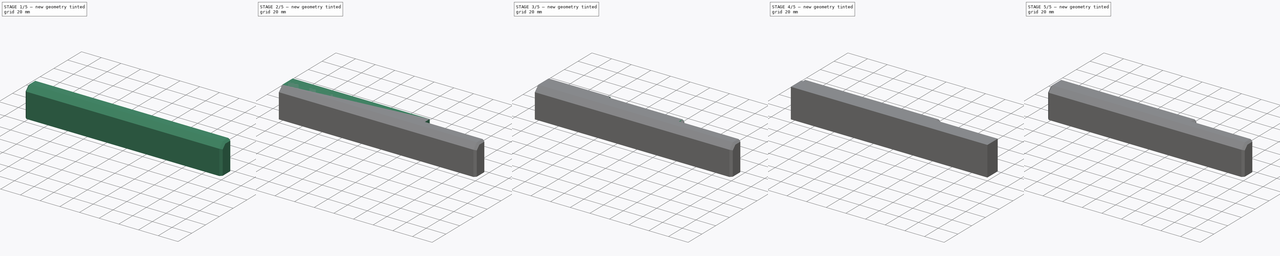
[diagram: build sequence overview — one tinted view per stage of 5, left to right]
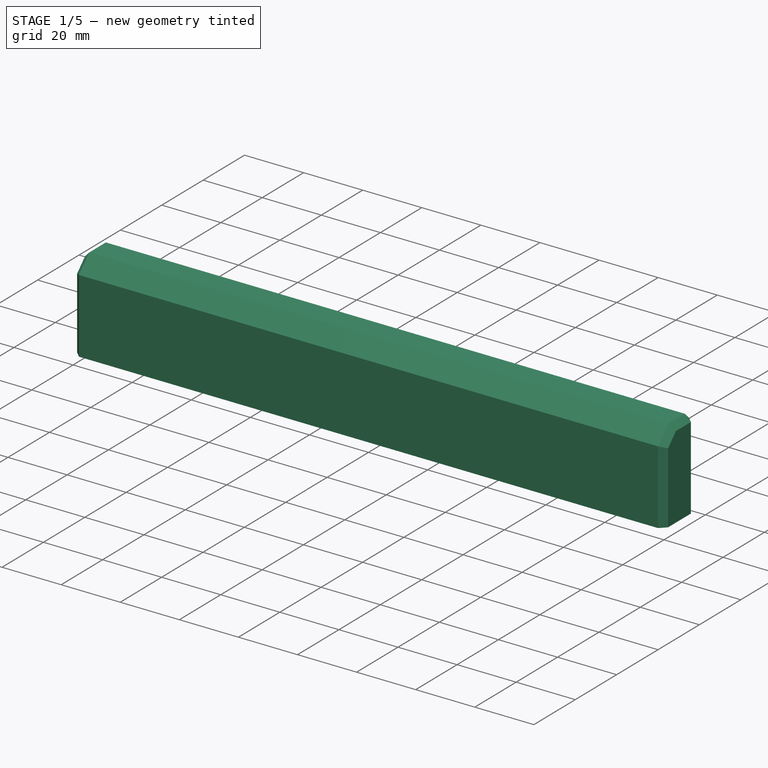
[diagram: stage 1 of 5 — iso view after this stage's code; geometry added in this stage tinted green]
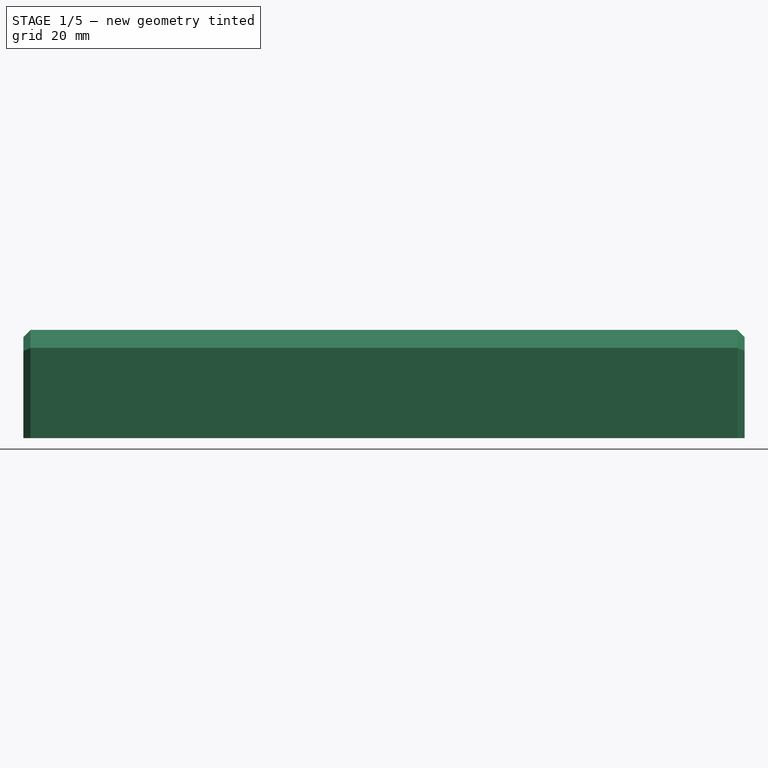
[diagram: stage 1 of 5 — front view after this stage's code; geometry added in this stage tinted green]
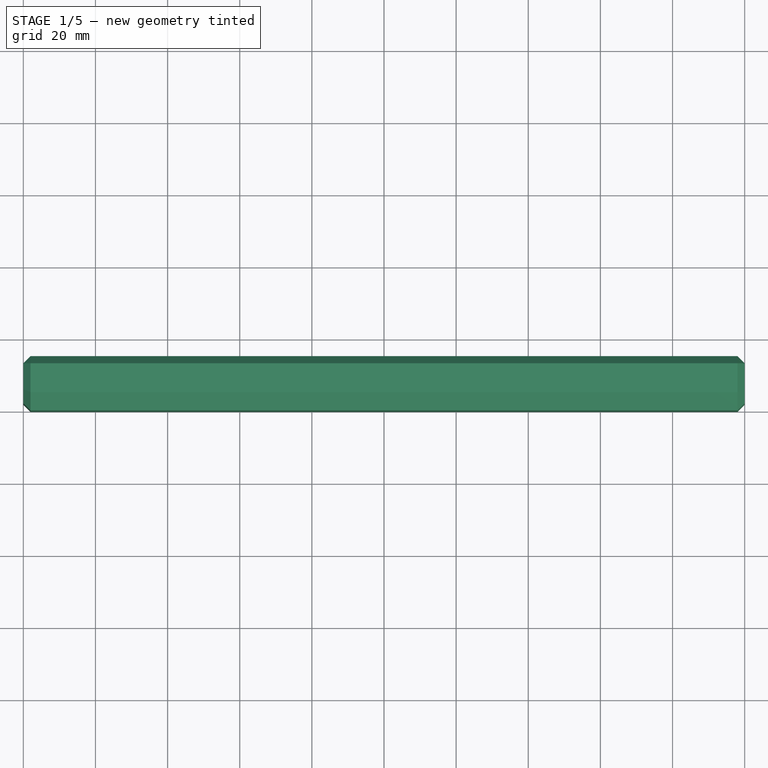
[diagram: stage 1 of 5 — top view after this stage's code; geometry added in this stage tinted green]
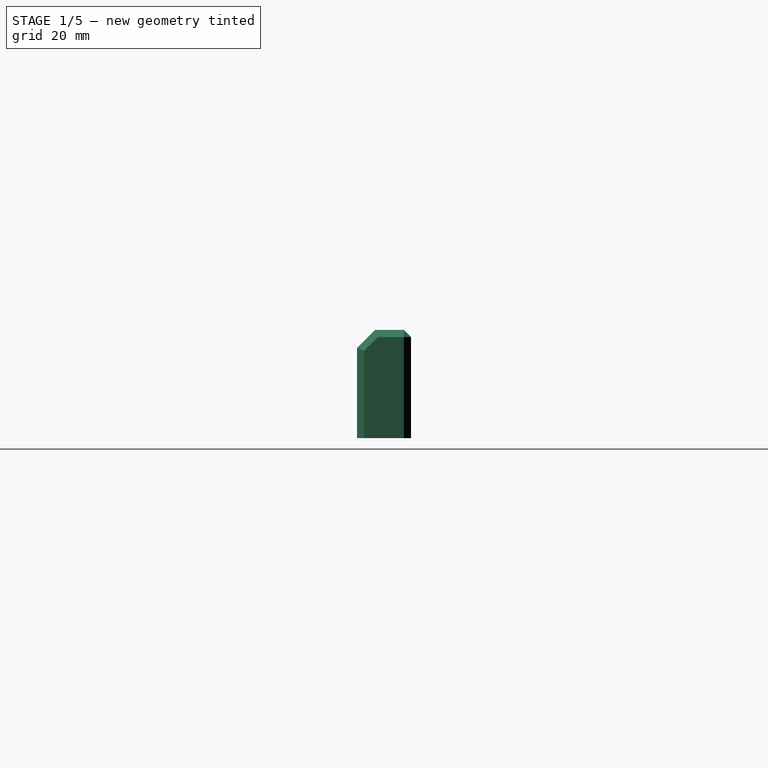
[diagram: stage 1 of 5 — right view after this stage's code; geometry added in this stage tinted green]
FCSTD DOCUMENT  (FreeCAD 1.0R39319 (Git))
Label: foam_shim
License: All rights reserved
LicenseURL: https://en.wikipedia.org/wiki/All_rights_reserved
objects: PartDesign::Chamfer×8, Part::Box×4, PartDesign::FeatureBase×4, PartDesign::Body×4, Sketcher::SketchObject×2, PartDesign::Pocket×2
note: 50 computed .brp shape members not serialized (recipe doc carries the construction recipe); baked Part::Feature solids carry a one-line shape summary decoded from their .brp

FEATURE [PartDesign::Body] Body002  label="keski_shimmiX4"
  AllowCompound = false
  BaseFeature = -> Box002
  Group = -> [BaseFeature002,Chamfer004,Chamfer005]
  Origin = -> Origin002
  Tip = -> Chamfer005
FEATURE [Part::Box] Box003  label="etu_taka_shimmiX003"
  AttacherType = Attacher::AttachEngine3D
  Height = 30
  Length = 200
  Width = 15
FEATURE [PartDesign::FeatureBase] BaseFeature003
  BaseFeature = -> Box003
  Suppressed = false
FEATURE [PartDesign::Chamfer] Chamfer006
  Angle = 45
  Base = -> BaseFeature003 [Edge10]
  BaseFeature = -> BaseFeature003
  ChamferType = 0
  FlipDirection = false
  Refine = true
  Size = 5
  Size2 = 1
  SupportTransform = false
  Suppressed = false
  UseAllEdges = false
FEATURE [PartDesign::Chamfer] Chamfer007
  Angle = 45
  Base = -> Chamfer006 [Edge4,Edge14,Edge13,Edge15,Edge5,Edge1,Edge6,Edge2,Edge10]
  BaseFeature = -> Chamfer006
  ChamferType = 0
  FlipDirection = false
  Refine = true
  Size = 2
  Size2 = 1
  SupportTransform = false
  Suppressed = false
  UseAllEdges = false
FEATURE [PartDesign::Body] Body003  label="etu_taka_shimmiX2"
  AllowCompound = false
  BaseFeature = -> Box003
  Group = -> [BaseFeature003,Chamfer006,Chamfer007]
  Origin = -> Origin003
  Tip = -> Chamfer007
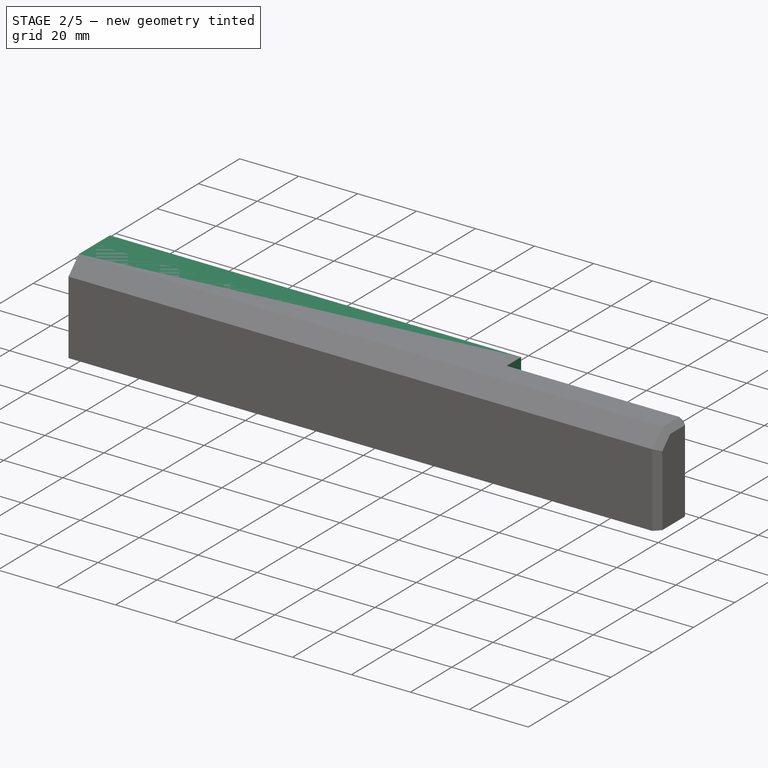
[diagram: stage 2 of 5 — iso view after this stage's code; geometry added in this stage tinted green]
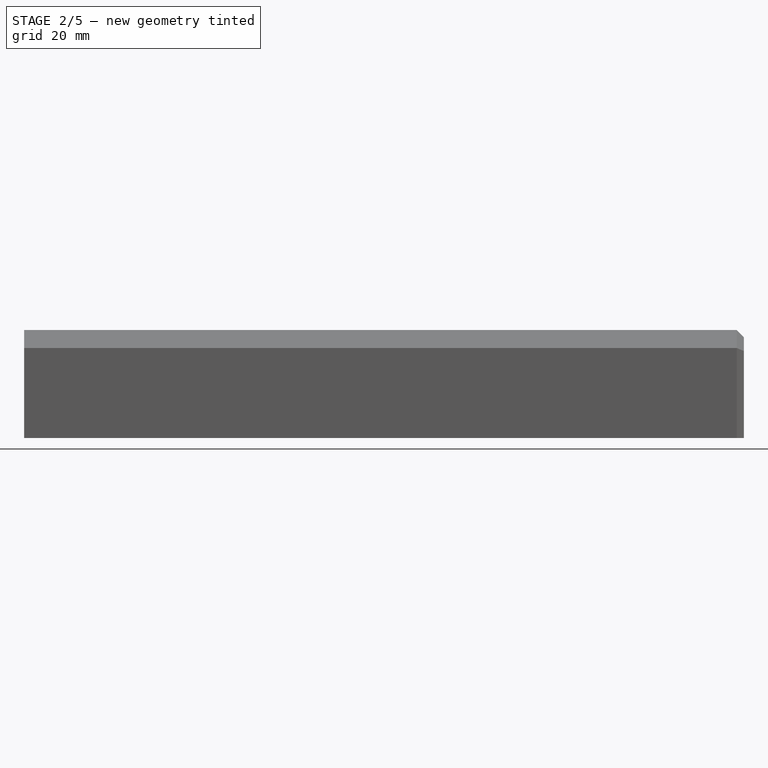
[diagram: stage 2 of 5 — front view after this stage's code; geometry added in this stage tinted green]
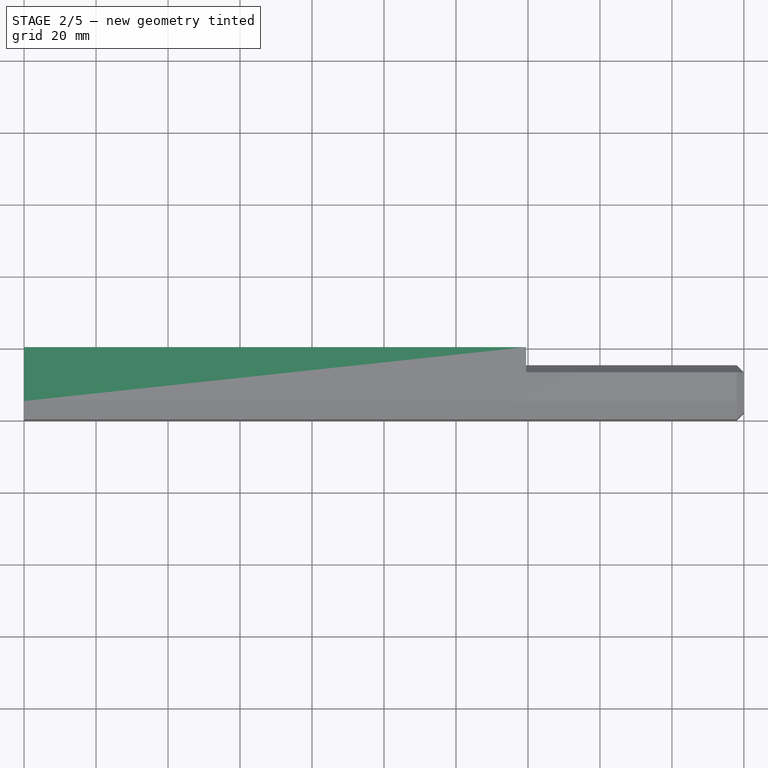
[diagram: stage 2 of 5 — top view after this stage's code; geometry added in this stage tinted green]
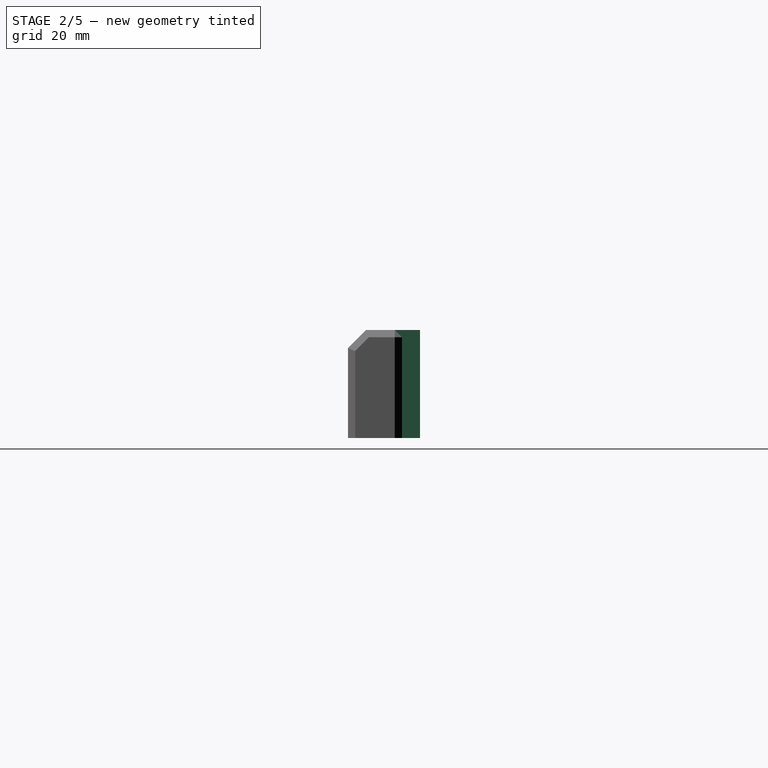
[diagram: stage 2 of 5 — right view after this stage's code; geometry added in this stage tinted green]
FEATURE [PartDesign::Body] Body001  label="kulma_shimmi"
  AllowCompound = false
  BaseFeature = -> Box001
  Group = -> [BaseFeature001,Chamfer002,Chamfer003,Sketch001,Pocket001]
  Origin = -> Origin001
  Tip = -> Pocket001
FEATURE [Part::Box] Box002  label="keski_shimmiX005"
  AttacherType = Attacher::AttachEngine3D
  Height = 30
  Length = 139.5
  Width = 20
FEATURE [PartDesign::FeatureBase] BaseFeature002
  BaseFeature = -> Box002
  Suppressed = false
FEATURE [PartDesign::Chamfer] Chamfer004
  Angle = 45
  Base = -> BaseFeature002 [Edge10]
  BaseFeature = -> BaseFeature002
  ChamferType = 0
  FlipDirection = false
  Refine = true
  Size = 5
  Size2 = 1
  SupportTransform = false
  Suppressed = false
  UseAllEdges = false
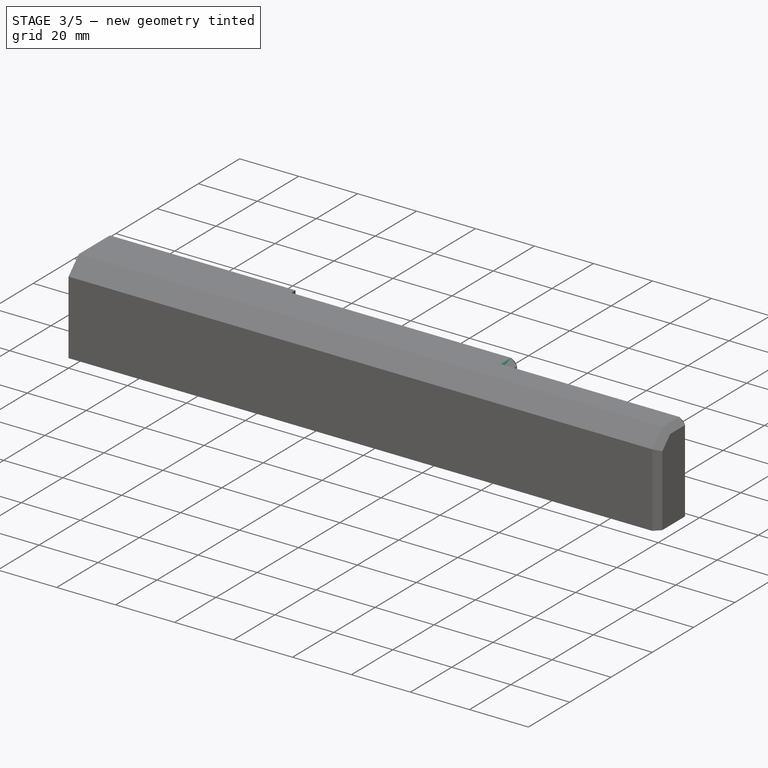
[diagram: stage 3 of 5 — iso view after this stage's code; geometry added in this stage tinted green]
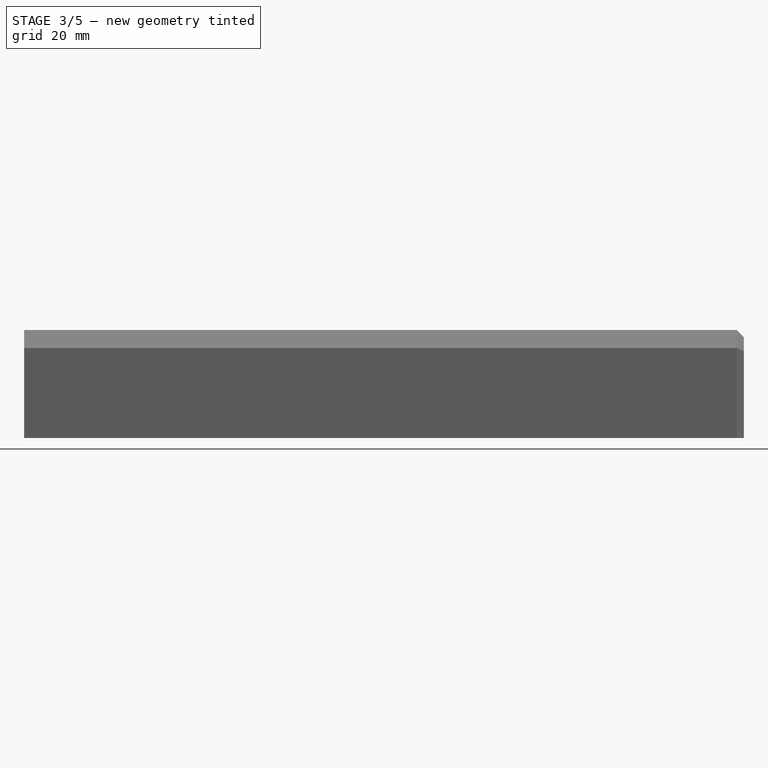
[diagram: stage 3 of 5 — front view after this stage's code; geometry added in this stage tinted green]
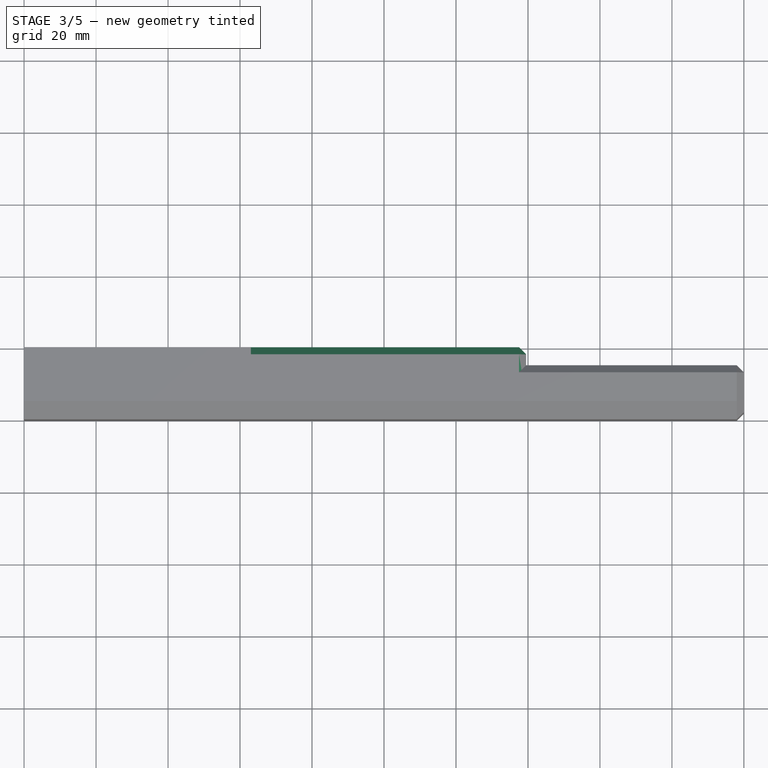
[diagram: stage 3 of 5 — top view after this stage's code; geometry added in this stage tinted green]
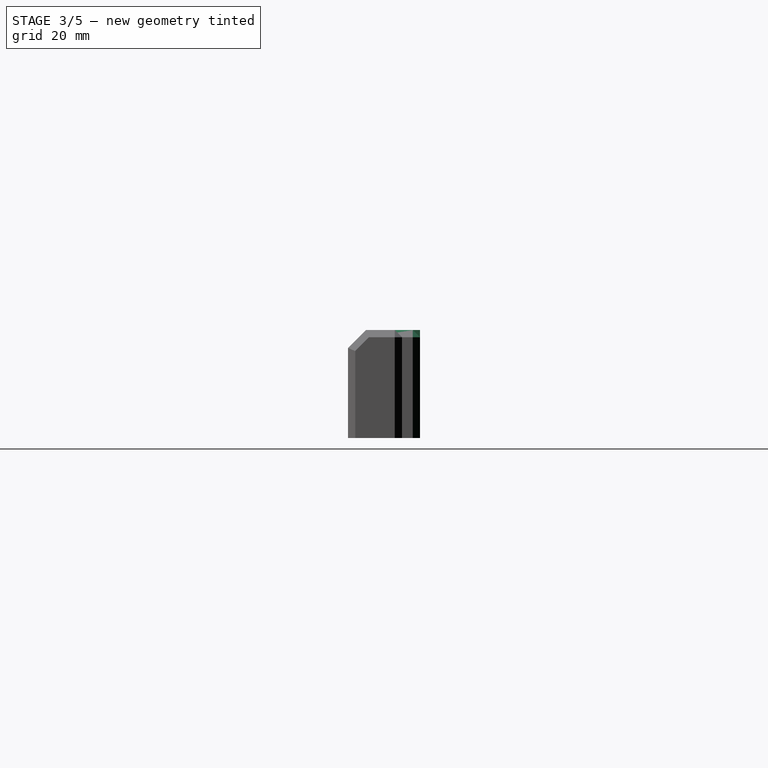
[diagram: stage 3 of 5 — right view after this stage's code; geometry added in this stage tinted green]
FEATURE [PartDesign::Body] Body
  AllowCompound = false
  BaseFeature = -> Box
  Group = -> [BaseFeature,Chamfer,Chamfer001,Sketch,Pocket]
  Origin = -> Origin
  Tip = -> Pocket
FEATURE [Part::Box] Box001  label="kulma_shimmi001"
  AttacherType = Attacher::AttachEngine3D
  Height = 30
  Length = 63
  Width = 20
FEATURE [PartDesign::FeatureBase] BaseFeature001
  BaseFeature = -> Box001
  Suppressed = false
FEATURE [PartDesign::Chamfer] Chamfer002
  Angle = 45
  Base = -> BaseFeature001 [Edge10]
  BaseFeature = -> BaseFeature001
  ChamferType = 0
  FlipDirection = false
  Refine = true
  Size = 5
  Size2 = 1
  SupportTransform = false
  Suppressed = false
  UseAllEdges = false
FEATURE [PartDesign::Chamfer] Chamfer005
  Angle = 45
  Base = -> Chamfer004 [Edge4,Edge14,Edge13,Edge15,Edge5,Edge1,Edge6,Edge2,Edge10]
  BaseFeature = -> Chamfer004
  ChamferType = 0
  FlipDirection = false
  Refine = true
  Size = 2
  Size2 = 1
  SupportTransform = false
  Suppressed = false
  UseAllEdges = false
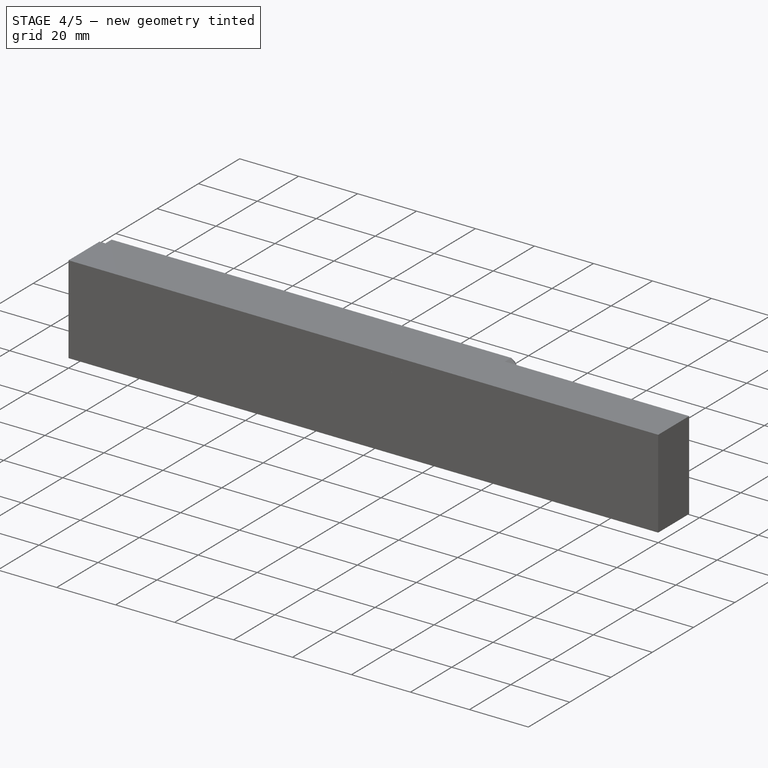
[diagram: stage 4 of 5 — iso view after this stage's code; geometry added in this stage tinted green]
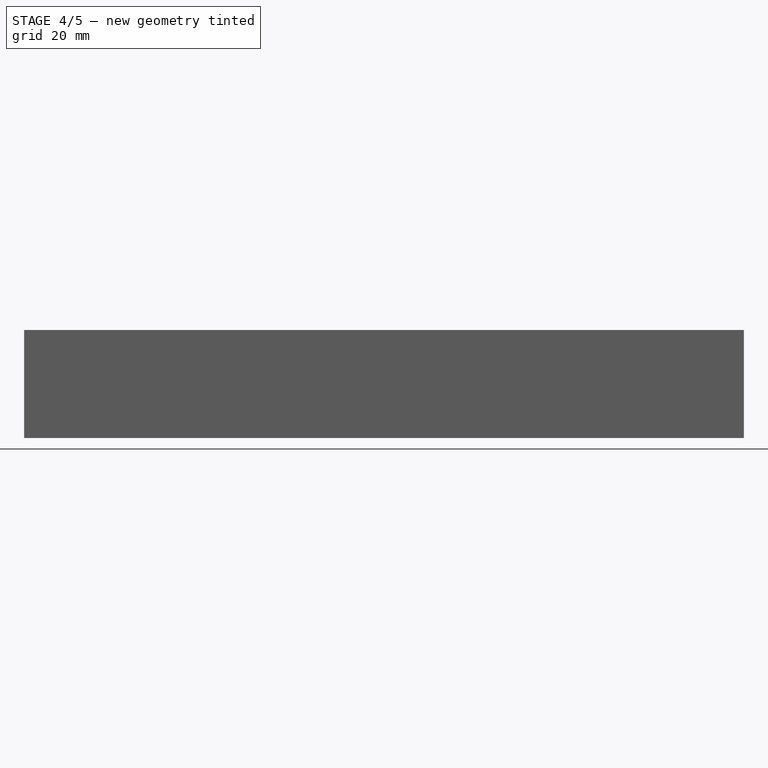
[diagram: stage 4 of 5 — front view after this stage's code; geometry added in this stage tinted green]
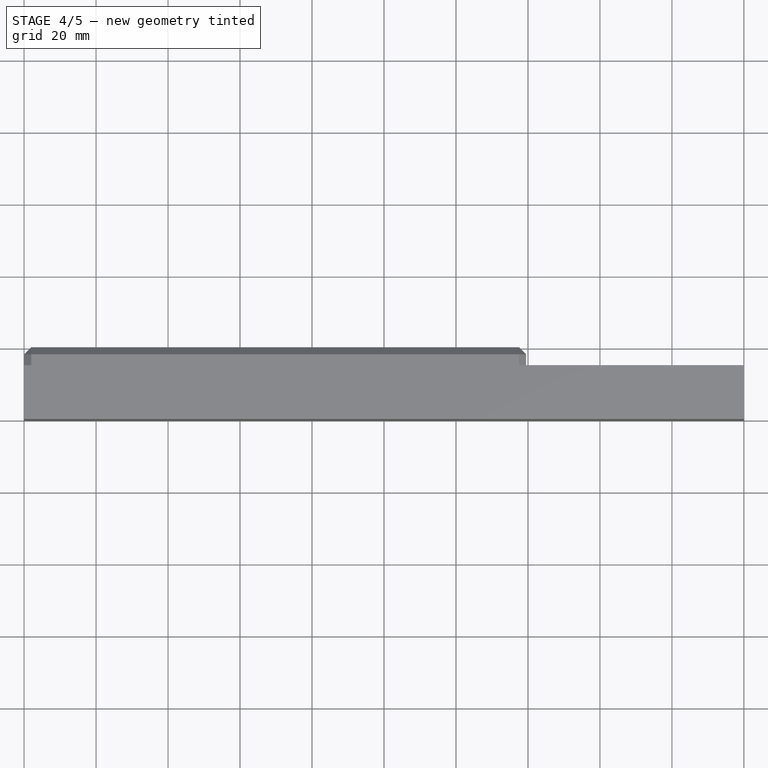
[diagram: stage 4 of 5 — top view after this stage's code; geometry added in this stage tinted green]
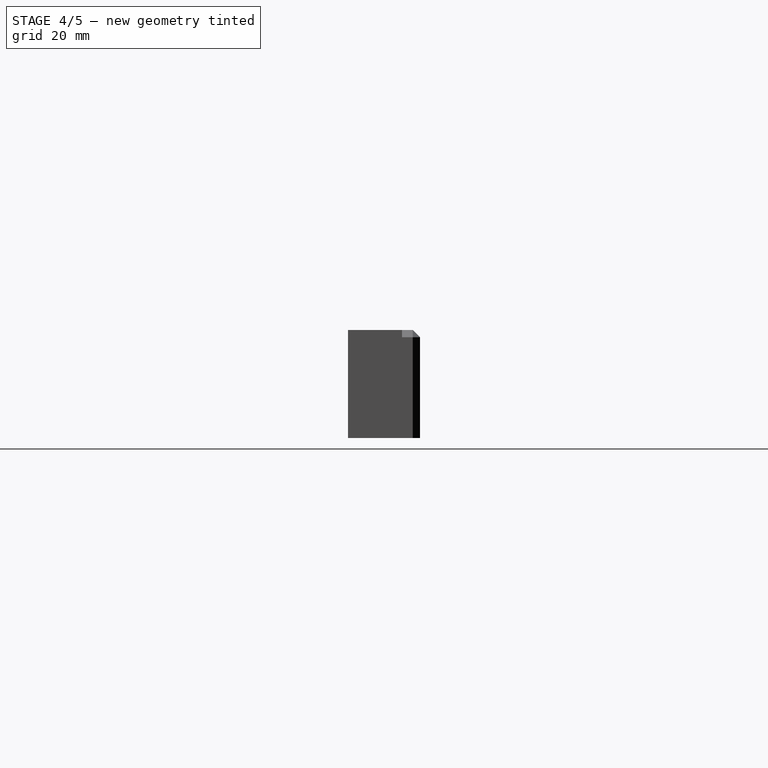
[diagram: stage 4 of 5 — right view after this stage's code; geometry added in this stage tinted green]
FEATURE [Part::Box] Box  label="Cube"
  AttacherType = Attacher::AttachEngine3D
  Height = 30
  Length = 200
  Width = 15
FEATURE [PartDesign::Chamfer] Chamfer003
  Angle = 45
  Base = -> Chamfer002 [Edge4,Edge14,Edge13,Edge15,Edge5,Edge1,Edge6,Edge2,Edge10]
  BaseFeature = -> Chamfer002
  ChamferType = 0
  FlipDirection = false
  Refine = true
  Size = 2
  Size2 = 1
  SupportTransform = false
  Suppressed = false
  UseAllEdges = false
FEATURE [Sketcher::SketchObject] Sketch001
  ArcFitTolerance = 1e-06
  AttachmentSupport = -> [Chamfer003]
  FullyConstrained = true
  MakeInternals = false
  MapMode = 5
  Placement = pos=(0,0,0) rot=(0.57735,-0.57735,-0.57735;2.0944rad)
  sketch-geometry (3):
    g0: LineSegment StartX=-5 StartY=0 StartZ=0 EndX=0 EndY=0 EndZ=0
    g1: LineSegment StartX=0 StartY=0 StartZ=0 EndX=0 EndY=7 EndZ=0
    g2: LineSegment StartX=0 StartY=7 StartZ=0 EndX=-5 EndY=0 EndZ=0
  constraints (9):
    c: PointOnObject(g0,g-1)
    c: PointOnObject(g0,g-1)
    c: Coincident(g1,g0)
    c: Coincident(g2,g1)
    c: Coincident(g2,g0)
    c: DistanceX(g0,g0) = 5
    c: DistanceY(g2,g2) = 7
    c: Vertical(g1)
    c: Vertical(g0,g-1)
FEATURE [PartDesign::Pocket] Pocket001
  BaseFeature = -> Chamfer003
  Direction = (1,0,0)
  Length = 13
  Length2 = 5
  Profile = -> Sketch001
  ReferenceAxis = -> Sketch001 [N_Axis]
  Refine = true
  Suppressed = false
  Type = 0
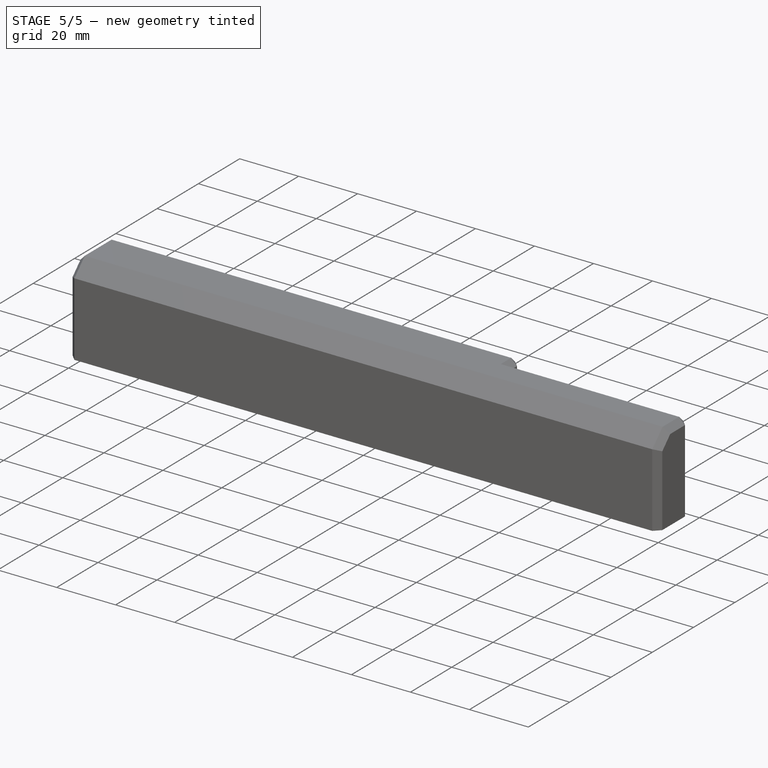
[diagram: stage 5 of 5 — iso view after this stage's code; geometry added in this stage tinted green]
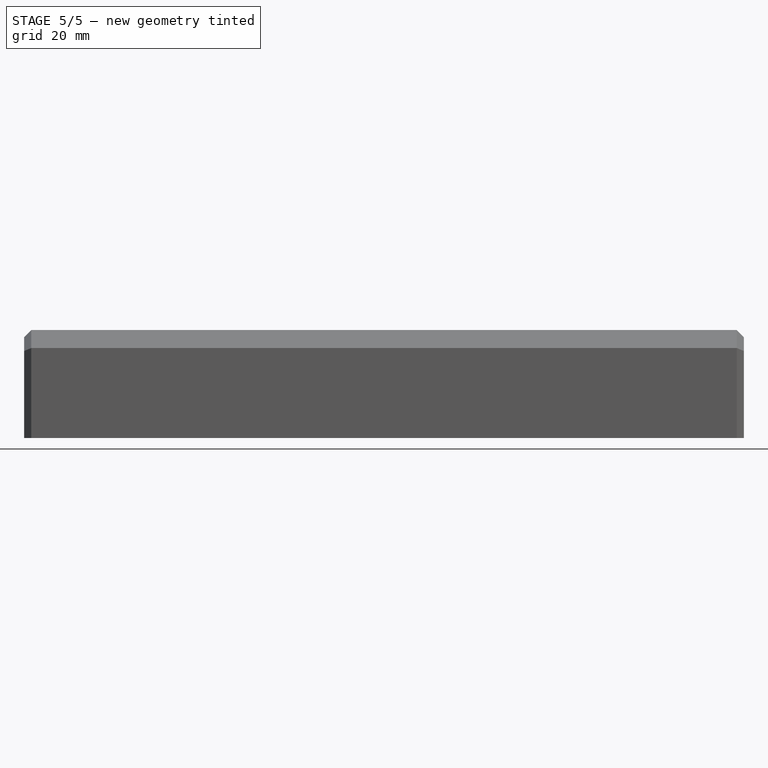
[diagram: stage 5 of 5 — front view after this stage's code; geometry added in this stage tinted green]
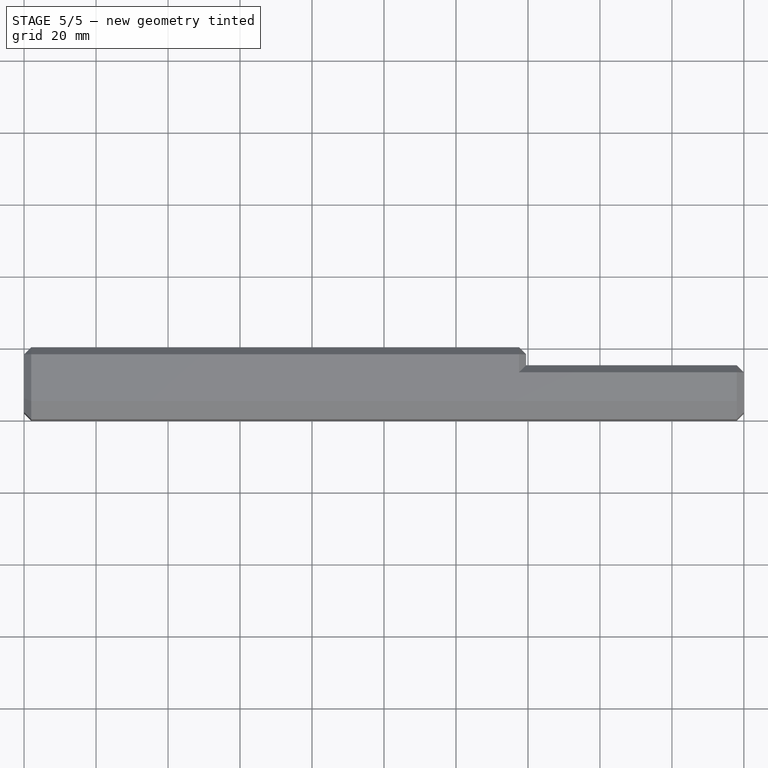
[diagram: stage 5 of 5 — top view after this stage's code; geometry added in this stage tinted green]
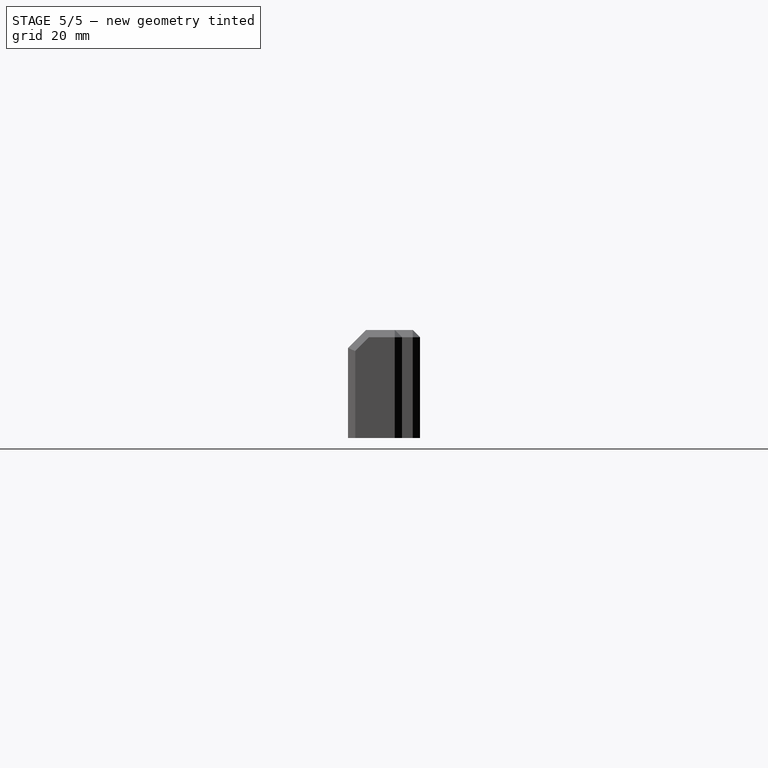
[diagram: stage 5 of 5 — right view after this stage's code; geometry added in this stage tinted green]
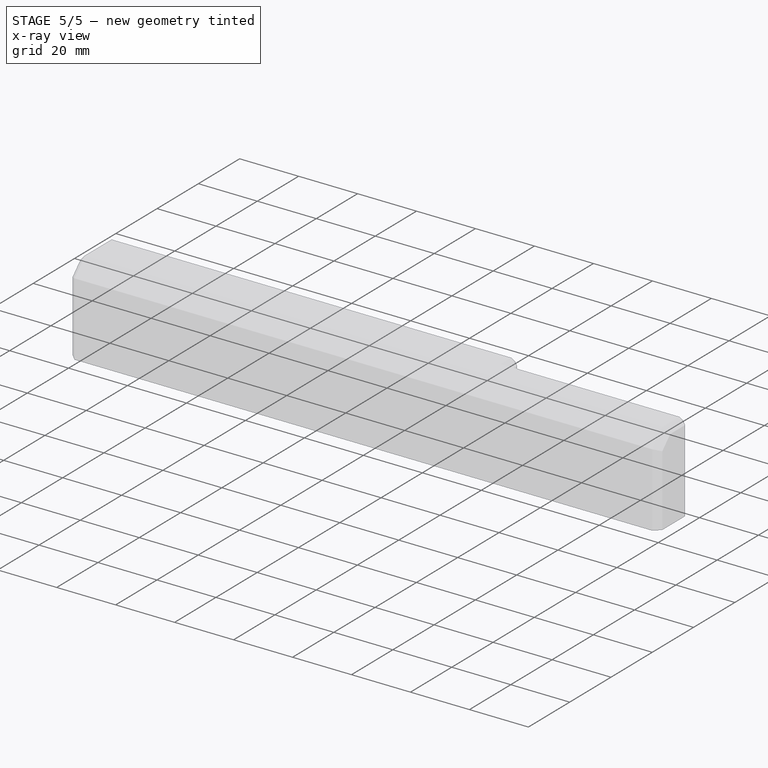
[diagram: stage 5 of 5 — x-ray composite at the iso view; earlier geometry ghosted, this stage's added geometry solid]
FEATURE [PartDesign::FeatureBase] BaseFeature
  BaseFeature = -> Box
  Suppressed = false
FEATURE [PartDesign::Chamfer] Chamfer
  Angle = 45
  Base = -> BaseFeature [Edge10]
  BaseFeature = -> BaseFeature
  ChamferType = 0
  FlipDirection = false
  Refine = true
  Size = 5
  Size2 = 1
  SupportTransform = false
  Suppressed = false
  UseAllEdges = false
FEATURE [PartDesign::Chamfer] Chamfer001
  Angle = 45
  Base = -> Chamfer [Edge4,Edge14,Edge13,Edge15,Edge5,Edge1,Edge6,Edge2,Edge10]
  BaseFeature = -> Chamfer
  ChamferType = 0
  FlipDirection = false
  Refine = true
  Size = 2
  Size2 = 1
  SupportTransform = false
  Suppressed = false
  UseAllEdges = false
FEATURE [Sketcher::SketchObject] Sketch
  ArcFitTolerance = 1e-06
  AttachmentSupport = -> [Chamfer001]
  FullyConstrained = true
  MakeInternals = false
  MapMode = 5
  Placement = pos=(0,0,0) rot=(0.57735,-0.57735,-0.57735;2.0944rad)
  sketch-geometry (3):
    g0: LineSegment StartX=-5 StartY=0 StartZ=0 EndX=0 EndY=0 EndZ=0
    g1: LineSegment StartX=0 StartY=0 StartZ=0 EndX=0 EndY=7 EndZ=0
    g2: LineSegment StartX=0 StartY=7 StartZ=0 EndX=-5 EndY=0 EndZ=0
  constraints (9):
    c: PointOnObject(g0,g-1)
    c: PointOnObject(g0,g-1)
    c: Coincident(g1,g0)
    c: Coincident(g2,g1)
    c: Coincident(g2,g0)
    c: DistanceX(g0,g0) = 5
    c: DistanceY(g2,g2) = 7
    c: Vertical(g1)
    c: Vertical(g0,g-1)
FEATURE [PartDesign::Pocket] Pocket
  BaseFeature = -> Chamfer001
  Direction = (1,0,0)
  Length = 20
  Length2 = 5
  Midplane = true
  Profile = -> Sketch
  ReferenceAxis = -> Sketch [N_Axis]
  Refine = true
  Suppressed = false
  Type = 0
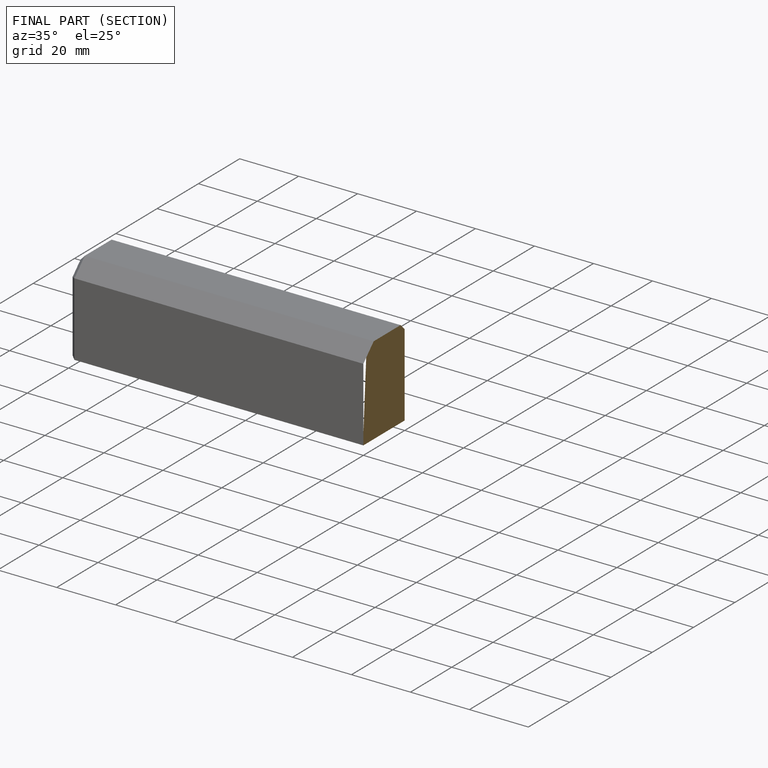
[diagram: finished part — half-section view (interior)]
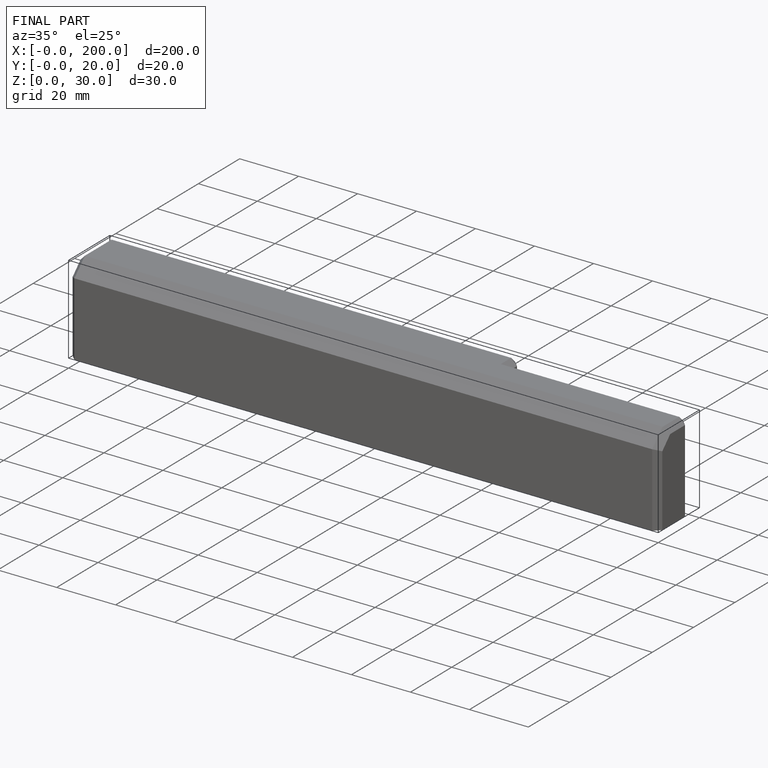
[diagram: finished part — iso view with bounding-box wireframe]
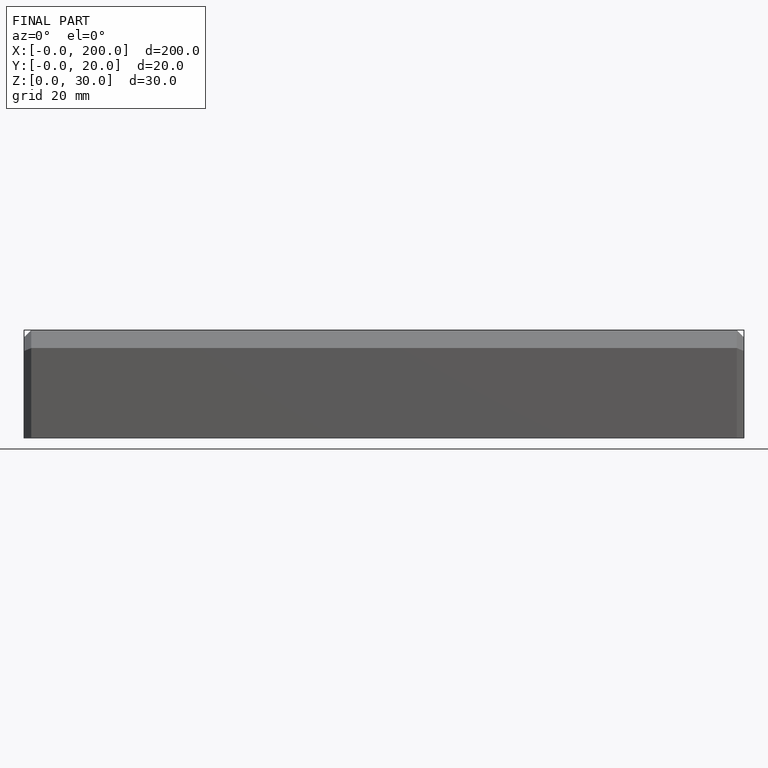
[diagram: finished part — front view with bounding-box wireframe]
